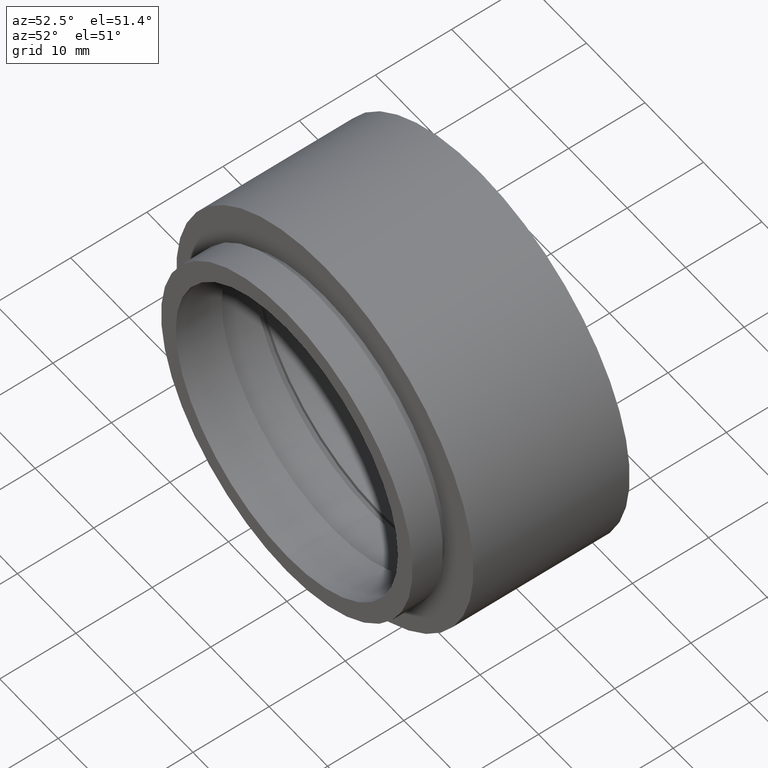
[diagram: clean part render]
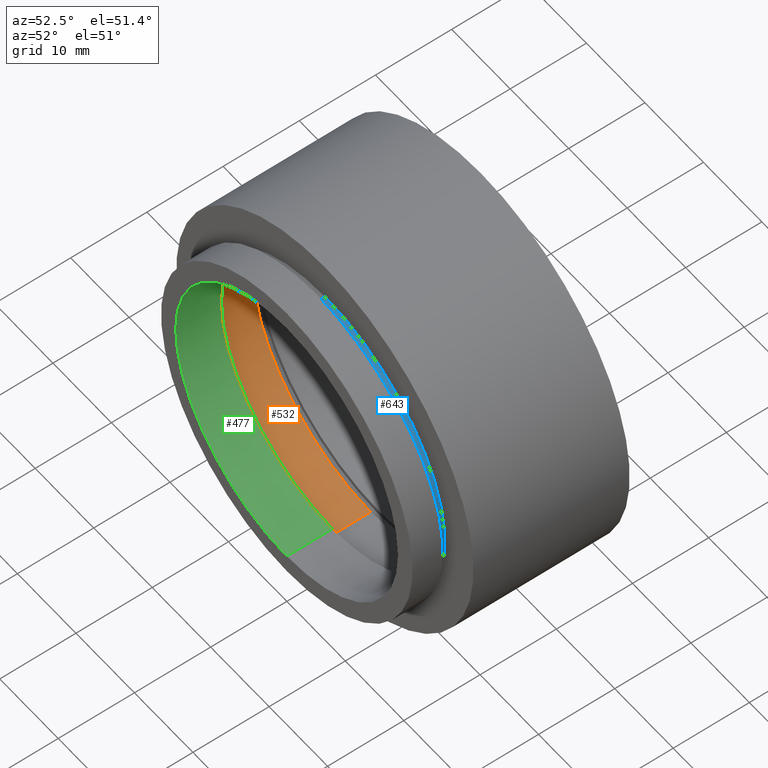
[diagram: same view with three faces highlighted in distinct colors, each labeled with its STEP entity id]
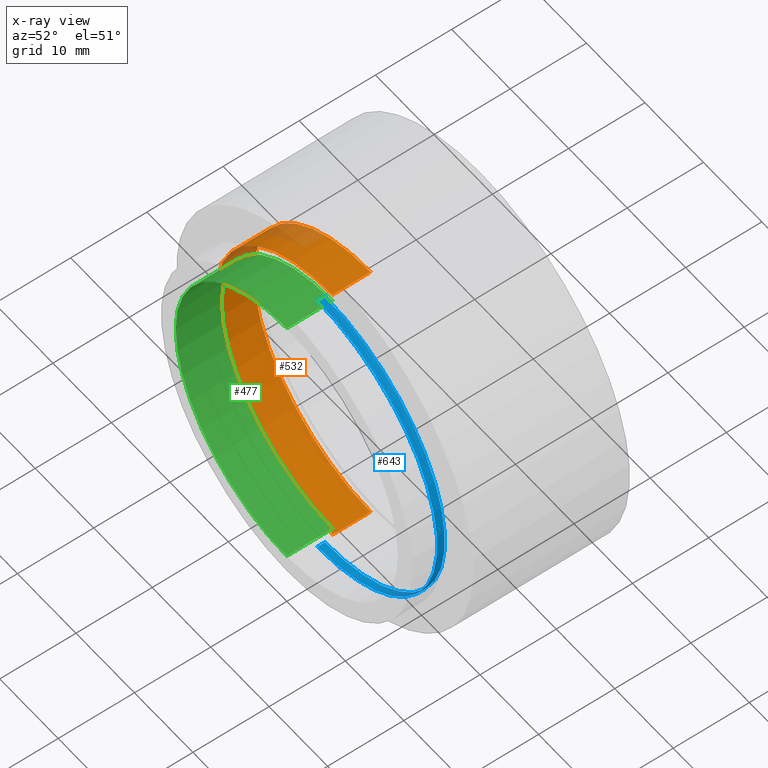
[diagram: x-ray of the same camera — body ghosted, the three highlighted faces saturated]
A machine part, auxiliary view with three faces highlighted in distinct colors.
The next image is the same camera in x-ray (body ghosted, the three faces saturated) — at least one of them is partly hidden behind the body in this view.
Their STEP definitions:

[orange] entity #532 — the highlighted cylindrical surface (partial cylindrical patch) has radius 20 mm, axis along (-0, -1, -0).
#2 = CARTESIAN_POINT ( 'NONE',  ( 0.0000000000000000000, 6.000000000000000000, 0.0000000000000000000 ) ) ;
#12 = DIRECTION ( 'NONE',  ( -0.0000000000000000000, -1.000000000000000000, -0.0000000000000000000 ) ) ;
#16 = CYLINDRICAL_SURFACE ( 'NONE', #506, 19.99999999999999600 ) ;
#18 = CIRCLE ( 'NONE', #612, 20.00000000000000000 ) ;
#33 = LINE ( 'NONE', #466, #229 ) ;
#88 = DIRECTION ( 'NONE',  ( 0.0000000000000000000, 0.0000000000000000000, -1.000000000000000000 ) ) ;
#129 = VERTEX_POINT ( 'NONE', #368 ) ;
#175 = CARTESIAN_POINT ( 'NONE',  ( 0.0000000000000000000, 11.00000000000000000, 0.0000000000000000000 ) ) ;
#177 = VECTOR ( 'NONE', #12, 1000.000000000000000 ) ;
#180 = ORIENTED_EDGE ( 'NONE', *, *, #592, .F. ) ;
#201 = AXIS2_PLACEMENT_3D ( 'NONE', #175, #570, #268 ) ;
#216 = DIRECTION ( 'NONE',  ( -0.0000000000000000000, -1.000000000000000000, -0.0000000000000000000 ) ) ;
#229 = VECTOR ( 'NONE', #490, 1000.000000000000000 ) ;
#251 = CIRCLE ( 'NONE', #201, 19.99999999999999600 ) ;
#268 = DIRECTION ( 'NONE',  ( 0.0000000000000000000, 0.0000000000000000000, -1.000000000000000000 ) ) ;
#275 = ORIENTED_EDGE ( 'NONE', *, *, #377, .T. ) ;
#320 = VERTEX_POINT ( 'NONE', #568 ) ;
#349 = DIRECTION ( 'NONE',  ( 0.0000000000000000000, 0.0000000000000000000, -1.000000000000000000 ) ) ;
#368 = CARTESIAN_POINT ( 'NONE',  ( 2.449293598294706100E-015, 11.00000000000000000, 19.99999999999999600 ) ) ;
#377 = EDGE_CURVE ( 'NONE', #129, #320, #33, .T. ) ;
#378 = ORIENTED_EDGE ( 'NONE', *, *, #447, .T. ) ;
#385 = CARTESIAN_POINT ( 'NONE',  ( 0.0000000000000000000, 0.0000000000000000000, -19.99999999999999600 ) ) ;
#393 = FACE_OUTER_BOUND ( 'NONE', #520, .T. ) ;
#406 = CARTESIAN_POINT ( 'NONE',  ( 0.0000000000000000000, 11.00000000000000000, -19.99999999999999600 ) ) ;
#421 = VERTEX_POINT ( 'NONE', #406 ) ;
#447 = EDGE_CURVE ( 'NONE', #320, #539, #18, .T. ) ;
#448 = CARTESIAN_POINT ( 'NONE',  ( 0.0000000000000000000, 0.0000000000000000000, 0.0000000000000000000 ) ) ;
#453 = LINE ( 'NONE', #385, #177 ) ;
#466 = CARTESIAN_POINT ( 'NONE',  ( 2.449293598294706100E-015, 0.0000000000000000000, 19.99999999999999600 ) ) ;
#490 = DIRECTION ( 'NONE',  ( -0.0000000000000000000, -1.000000000000000000, -0.0000000000000000000 ) ) ;
#506 = AXIS2_PLACEMENT_3D ( 'NONE', #448, #216, #88 ) ;
#520 = EDGE_LOOP ( 'NONE', ( #180, #275, #378, #574 ) ) ;
#527 = EDGE_CURVE ( 'NONE', #421, #539, #453, .T. ) ;
#532 = ADVANCED_FACE ( 'NONE', ( #393 ), #16, .F. ) ;
#539 = VERTEX_POINT ( 'NONE', #586 ) ;
#568 = CARTESIAN_POINT ( 'NONE',  ( 2.449293598294706500E-015, 6.000000000000000000, 20.00000000000000000 ) ) ;
#570 = DIRECTION ( 'NONE',  ( -0.0000000000000000000, -1.000000000000000000, -0.0000000000000000000 ) ) ;
#574 = ORIENTED_EDGE ( 'NONE', *, *, #527, .F. ) ;
#579 = DIRECTION ( 'NONE',  ( -0.0000000000000000000, -1.000000000000000000, -0.0000000000000000000 ) ) ;
#586 = CARTESIAN_POINT ( 'NONE',  ( 0.0000000000000000000, 6.000000000000000000, -20.00000000000000000 ) ) ;
#592 = EDGE_CURVE ( 'NONE', #129, #421, #251, .T. ) ;
#612 = AXIS2_PLACEMENT_3D ( 'NONE', #2, #579, #349 ) ;

[blue] entity #643 — the highlighted cylindrical surface (partial cylindrical patch) has radius 20.5 mm, axis along (-0, -1, -0).
#19 = DIRECTION ( 'NONE',  ( 0.0000000000000000000, 0.0000000000000000000, -1.000000000000000000 ) ) ;
#22 = VERTEX_POINT ( 'NONE', #363 ) ;
#28 = FACE_OUTER_BOUND ( 'NONE', #43, .T. ) ;
#43 = EDGE_LOOP ( 'NONE', ( #341, #602, #409, #565 ) ) ;
#56 = VERTEX_POINT ( 'NONE', #94 ) ;
#94 = CARTESIAN_POINT ( 'NONE',  ( 0.0000000000000000000, 3.999999999999999100, -20.50000000000000000 ) ) ;
#130 = EDGE_CURVE ( 'NONE', #56, #651, #318, .T. ) ;
#141 = DIRECTION ( 'NONE',  ( 0.0000000000000000000, 0.0000000000000000000, -1.000000000000000000 ) ) ;
#157 = DIRECTION ( 'NONE',  ( -0.0000000000000000000, -1.000000000000000000, -0.0000000000000000000 ) ) ;
#176 = CARTESIAN_POINT ( 'NONE',  ( 0.0000000000000000000, 4.999999999999999100, -20.50000000000000000 ) ) ;
#215 = DIRECTION ( 'NONE',  ( 0.0000000000000000000, 0.0000000000000000000, -1.000000000000000000 ) ) ;
#243 = CYLINDRICAL_SURFACE ( 'NONE', #413, 20.50000000000000000 ) ;
#298 = CARTESIAN_POINT ( 'NONE',  ( 2.510525938252074500E-015, 0.0000000000000000000, 20.50000000000000000 ) ) ;
#309 = VECTOR ( 'NONE', #310, 1000.000000000000000 ) ;
#310 = DIRECTION ( 'NONE',  ( -0.0000000000000000000, -1.000000000000000000, -0.0000000000000000000 ) ) ;
#318 = CIRCLE ( 'NONE', #479, 20.50000000000000000 ) ;
#334 = CIRCLE ( 'NONE', #588, 20.50000000000000000 ) ;
#341 = ORIENTED_EDGE ( 'NONE', *, *, #364, .T. ) ;
#363 = CARTESIAN_POINT ( 'NONE',  ( 2.510525938252074500E-015, 4.999999999999999100, 20.50000000000000000 ) ) ;
#364 = EDGE_CURVE ( 'NONE', #575, #22, #334, .T. ) ;
#409 = ORIENTED_EDGE ( 'NONE', *, *, #130, .F. ) ;
#413 = AXIS2_PLACEMENT_3D ( 'NONE', #439, #450, #19 ) ;
#424 = CARTESIAN_POINT ( 'NONE',  ( 0.0000000000000000000, 0.0000000000000000000, -20.50000000000000000 ) ) ;
#428 = VECTOR ( 'NONE', #599, 1000.000000000000000 ) ;
#439 = CARTESIAN_POINT ( 'NONE',  ( 0.0000000000000000000, 0.0000000000000000000, 0.0000000000000000000 ) ) ;
#450 = DIRECTION ( 'NONE',  ( -0.0000000000000000000, -1.000000000000000000, -0.0000000000000000000 ) ) ;
#460 = EDGE_CURVE ( 'NONE', #22, #651, #616, .T. ) ;
#468 = EDGE_CURVE ( 'NONE', #575, #56, #646, .T. ) ;
#479 = AXIS2_PLACEMENT_3D ( 'NONE', #562, #157, #215 ) ;
#484 = CARTESIAN_POINT ( 'NONE',  ( 0.0000000000000000000, 4.999999999999999100, 0.0000000000000000000 ) ) ;
#537 = CARTESIAN_POINT ( 'NONE',  ( 2.510525938252074500E-015, 3.999999999999999100, 20.50000000000000000 ) ) ;
#559 = DIRECTION ( 'NONE',  ( -0.0000000000000000000, -1.000000000000000000, -0.0000000000000000000 ) ) ;
#562 = CARTESIAN_POINT ( 'NONE',  ( 0.0000000000000000000, 3.999999999999999100, 0.0000000000000000000 ) ) ;
#565 = ORIENTED_EDGE ( 'NONE', *, *, #468, .F. ) ;
#575 = VERTEX_POINT ( 'NONE', #176 ) ;
#588 = AXIS2_PLACEMENT_3D ( 'NONE', #484, #559, #141 ) ;
#599 = DIRECTION ( 'NONE',  ( -0.0000000000000000000, -1.000000000000000000, -0.0000000000000000000 ) ) ;
#602 = ORIENTED_EDGE ( 'NONE', *, *, #460, .T. ) ;
#616 = LINE ( 'NONE', #298, #309 ) ;
#643 = ADVANCED_FACE ( 'NONE', ( #28 ), #243, .T. ) ;
#646 = LINE ( 'NONE', #424, #428 ) ;
#651 = VERTEX_POINT ( 'NONE', #537 ) ;

[green] entity #477 — the highlighted cylindrical surface (partial cylindrical patch) has radius 19 mm, axis along (-0, -1, -0).
#29 = EDGE_CURVE ( 'NONE', #357, #63, #282, .T. ) ;
#37 = CARTESIAN_POINT ( 'NONE',  ( 0.0000000000000000000, -6.123233995736767300E-016, -19.00000000000000000 ) ) ;
#46 = ORIENTED_EDGE ( 'NONE', *, *, #292, .T. ) ;
#50 = VECTOR ( 'NONE', #227, 1000.000000000000000 ) ;
#63 = VERTEX_POINT ( 'NONE', #37 ) ;
#81 = VERTEX_POINT ( 'NONE', #287 ) ;
#87 = EDGE_CURVE ( 'NONE', #81, #357, #436, .T. ) ;
#111 = VECTOR ( 'NONE', #217, 1000.000000000000000 ) ;
#154 = DIRECTION ( 'NONE',  ( 0.0000000000000000000, 0.0000000000000000000, -1.000000000000000000 ) ) ;
#159 = CIRCLE ( 'NONE', #555, 19.00000000000000000 ) ;
#163 = CARTESIAN_POINT ( 'NONE',  ( 0.0000000000000000000, 0.0000000000000000000, 0.0000000000000000000 ) ) ;
#185 = DIRECTION ( 'NONE',  ( -0.0000000000000000000, -1.000000000000000000, -0.0000000000000000000 ) ) ;
#198 = CARTESIAN_POINT ( 'NONE',  ( 2.326828918379971000E-015, 0.0000000000000000000, 19.00000000000000000 ) ) ;
#200 = CARTESIAN_POINT ( 'NONE',  ( 2.326828918379971000E-015, -6.123233995736767300E-016, 19.00000000000000000 ) ) ;
#217 = DIRECTION ( 'NONE',  ( -0.0000000000000000000, -1.000000000000000000, -0.0000000000000000000 ) ) ;
#227 = DIRECTION ( 'NONE',  ( -0.0000000000000000000, -1.000000000000000000, -0.0000000000000000000 ) ) ;
#235 = DIRECTION ( 'NONE',  ( -0.0000000000000000000, -1.000000000000000000, -0.0000000000000000000 ) ) ;
#282 = LINE ( 'NONE', #505, #111 ) ;
#287 = CARTESIAN_POINT ( 'NONE',  ( 2.326828918379971000E-015, 5.999999999999999100, 19.00000000000000000 ) ) ;
#292 = EDGE_CURVE ( 'NONE', #81, #512, #627, .T. ) ;
#339 = DIRECTION ( 'NONE',  ( 0.0000000000000000000, 0.0000000000000000000, -1.000000000000000000 ) ) ;
#352 = CYLINDRICAL_SURFACE ( 'NONE', #514, 19.00000000000000000 ) ;
#355 = CARTESIAN_POINT ( 'NONE',  ( 0.0000000000000000000, 5.999999999999999100, -19.00000000000000000 ) ) ;
#357 = VERTEX_POINT ( 'NONE', #355 ) ;
#373 = DIRECTION ( 'NONE',  ( -0.0000000000000000000, -1.000000000000000000, -0.0000000000000000000 ) ) ;
#396 = ORIENTED_EDGE ( 'NONE', *, *, #29, .F. ) ;
#432 = EDGE_CURVE ( 'NONE', #512, #63, #159, .T. ) ;
#436 = CIRCLE ( 'NONE', #495, 19.00000000000000000 ) ;
#471 = EDGE_LOOP ( 'NONE', ( #635, #46, #620, #396 ) ) ;
#477 = ADVANCED_FACE ( 'NONE', ( #663 ), #352, .F. ) ;
#495 = AXIS2_PLACEMENT_3D ( 'NONE', #576, #185, #339 ) ;
#505 = CARTESIAN_POINT ( 'NONE',  ( 0.0000000000000000000, 0.0000000000000000000, -19.00000000000000000 ) ) ;
#512 = VERTEX_POINT ( 'NONE', #200 ) ;
#514 = AXIS2_PLACEMENT_3D ( 'NONE', #163, #373, #582 ) ;
#555 = AXIS2_PLACEMENT_3D ( 'NONE', #623, #235, #154 ) ;
#576 = CARTESIAN_POINT ( 'NONE',  ( 0.0000000000000000000, 5.999999999999999100, 0.0000000000000000000 ) ) ;
#582 = DIRECTION ( 'NONE',  ( 0.0000000000000000000, 0.0000000000000000000, -1.000000000000000000 ) ) ;
#620 = ORIENTED_EDGE ( 'NONE', *, *, #432, .T. ) ;
#623 = CARTESIAN_POINT ( 'NONE',  ( 0.0000000000000000000, -6.123233995736767300E-016, 0.0000000000000000000 ) ) ;
#627 = LINE ( 'NONE', #198, #50 ) ;
#635 = ORIENTED_EDGE ( 'NONE', *, *, #87, .F. ) ;
#663 = FACE_OUTER_BOUND ( 'NONE', #471, .T. ) ;